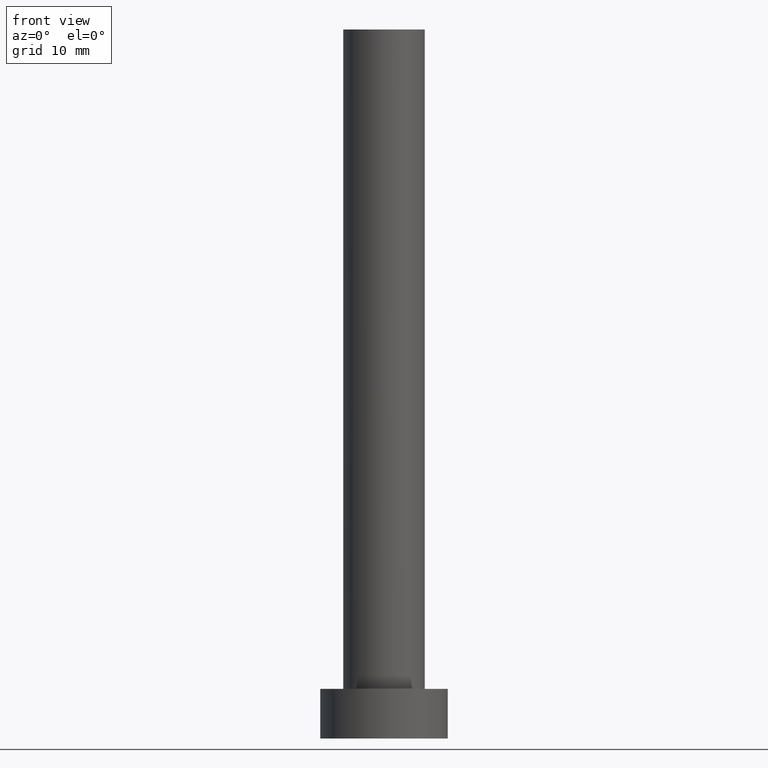
[diagram: clean part render]
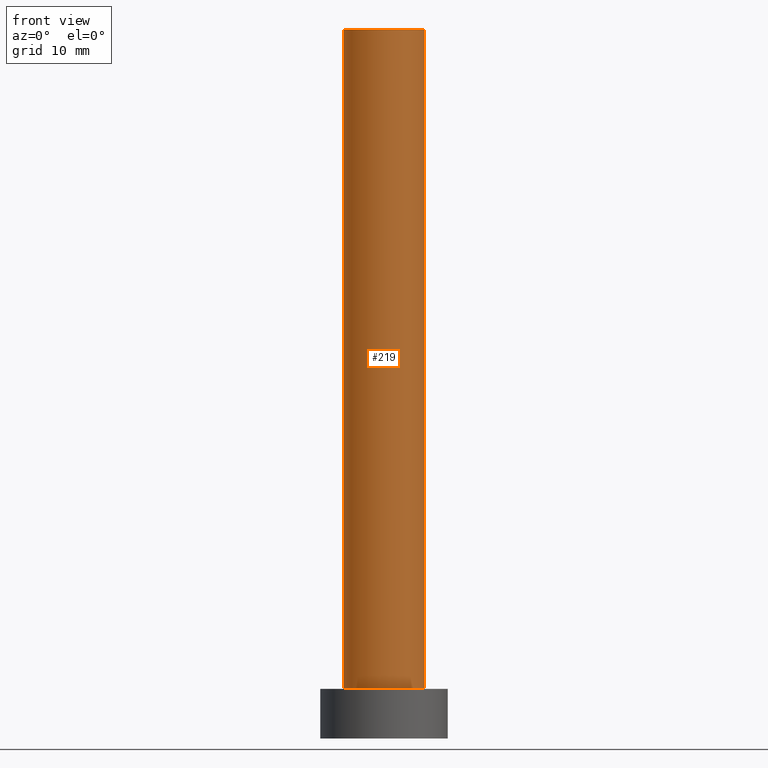
[diagram: same view with one face highlighted and labeled with its STEP entity id]
A machine part, front view. The second image highlights one B-rep face of the part: STEP entity #219.
In plain terms, the highlighted cylindrical surface (partial cylindrical patch) has radius 5.75 mm, axis along (-0, -0, -1).
Its self-contained STEP definition (entity closure, byte-faithful):
#15 = VECTOR ( 'NONE', #225, 1000.000000000000000 ) ;
#16 = DIRECTION ( 'NONE',  ( 1.000000000000000000, 0.000000000000000000, 0.000000000000000000 ) ) ;
#28 = CARTESIAN_POINT ( 'NONE',  ( 0.000000000000000000, 0.000000000000000000, 7.000000000000000000 ) ) ;
#31 = EDGE_CURVE ( 'NONE', #249, #190, #247, .T. ) ;
#36 = CARTESIAN_POINT ( 'NONE',  ( -5.750000000000000000, 0.000000000000000000, 7.000000000000000000 ) ) ;
#38 = CARTESIAN_POINT ( 'NONE',  ( -5.750000000000000000, 0.000000000000000000, 100.0000000000000000 ) ) ;
#40 = ORIENTED_EDGE ( 'NONE', *, *, #178, .F. ) ;
#50 = VECTOR ( 'NONE', #208, 1000.000000000000000 ) ;
#52 = CARTESIAN_POINT ( 'NONE',  ( 5.750000000000000000, 7.041719095097279894E-16, 7.000000000000000000 ) ) ;
#53 = DIRECTION ( 'NONE',  ( -1.000000000000000000, 0.000000000000000000, 0.000000000000000000 ) ) ;
#55 = LINE ( 'NONE', #150, #15 ) ;
#59 = AXIS2_PLACEMENT_3D ( 'NONE', #156, #93, #16 ) ;
#62 = EDGE_LOOP ( 'NONE', ( #40, #125, #181, #72 ) ) ;
#72 = ORIENTED_EDGE ( 'NONE', *, *, #120, .T. ) ;
#73 = CARTESIAN_POINT ( 'NONE',  ( 0.000000000000000000, 0.000000000000000000, 100.0000000000000000 ) ) ;
#93 = DIRECTION ( 'NONE',  ( 0.000000000000000000, 0.000000000000000000, 1.000000000000000000 ) ) ;
#115 = CIRCLE ( 'NONE', #59, 5.750000000000000000 ) ;
#120 = EDGE_CURVE ( 'NONE', #190, #183, #189, .T. ) ;
#125 = ORIENTED_EDGE ( 'NONE', *, *, #152, .F. ) ;
#135 = DIRECTION ( 'NONE',  ( 0.000000000000000000, 0.000000000000000000, 1.000000000000000000 ) ) ;
#150 = CARTESIAN_POINT ( 'NONE',  ( 5.750000000000000000, 7.041719095097279894E-16, 100.0000000000000000 ) ) ;
#152 = EDGE_CURVE ( 'NONE', #249, #216, #115, .T. ) ;
#156 = CARTESIAN_POINT ( 'NONE',  ( 0.000000000000000000, 0.000000000000000000, 100.0000000000000000 ) ) ;
#167 = CYLINDRICAL_SURFACE ( 'NONE', #248, 5.750000000000000000 ) ;
#178 = EDGE_CURVE ( 'NONE', #216, #183, #55, .T. ) ;
#181 = ORIENTED_EDGE ( 'NONE', *, *, #31, .T. ) ;
#183 = VERTEX_POINT ( 'NONE', #52 ) ;
#185 = CARTESIAN_POINT ( 'NONE',  ( -5.750000000000000000, 0.000000000000000000, 100.0000000000000000 ) ) ;
#187 = CARTESIAN_POINT ( 'NONE',  ( 5.750000000000000000, 7.041719095097279894E-16, 100.0000000000000000 ) ) ;
#189 = CIRCLE ( 'NONE', #253, 5.750000000000000000 ) ;
#190 = VERTEX_POINT ( 'NONE', #36 ) ;
#208 = DIRECTION ( 'NONE',  ( -0.000000000000000000, -0.000000000000000000, -1.000000000000000000 ) ) ;
#216 = VERTEX_POINT ( 'NONE', #187 ) ;
#219 = ADVANCED_FACE ( 'NONE', ( #226 ), #167, .T. ) ;
#225 = DIRECTION ( 'NONE',  ( -0.000000000000000000, -0.000000000000000000, -1.000000000000000000 ) ) ;
#226 = FACE_OUTER_BOUND ( 'NONE', #62, .T. ) ;
#227 = DIRECTION ( 'NONE',  ( 1.000000000000000000, 0.000000000000000000, 0.000000000000000000 ) ) ;
#245 = DIRECTION ( 'NONE',  ( -0.000000000000000000, -0.000000000000000000, -1.000000000000000000 ) ) ;
#247 = LINE ( 'NONE', #38, #50 ) ;
#248 = AXIS2_PLACEMENT_3D ( 'NONE', #73, #245, #53 ) ;
#249 = VERTEX_POINT ( 'NONE', #185 ) ;
#253 = AXIS2_PLACEMENT_3D ( 'NONE', #28, #135, #227 ) ;